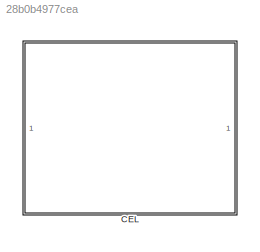
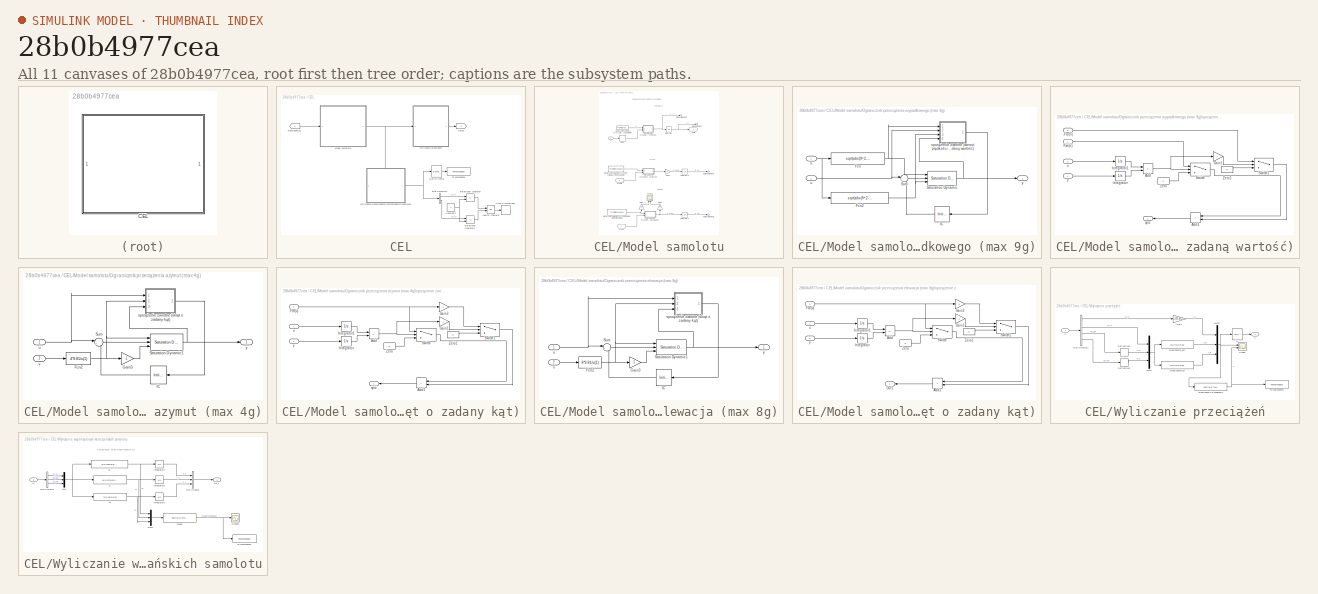
[diagram: thumbnail index - all 11 canvases of the model, root first then tree order]
MODEL slx_28b0b4977cea
KIND model
CONFIG AbsTol = auto
CONFIG EnableMultiTasking = off
CONFIG FixedStep = auto
CONFIG MaxStep = 0.1
CONFIG MinStep = auto
CONFIG RelTol = 1e-3
CONFIG SampleTimeConstraint = Unconstrained
CONFIG Solver = VariableStepAuto
CONFIG SolverName = VariableStepAuto
CONFIG StartTime = 0.0
CONFIG StopTime = t_sim
BLOCK [SubSystem] CEL
  Ports = []
  RequestExecContextInheritance = off
BLOCK [BusSelector] CEL/Bus Selector1
  OutputSignals = x_c,z_c
  Ports = [1, 2]
BLOCK [BusToVector] CEL/Bus to Vector
BLOCK [Constant] CEL/Constant1
  Value = 0
BLOCK [Goto] CEL/Goto1
  GotoTag = n
BLOCK [Logic] CEL/Logical Operator
  AllPortsSameDT = off
  Operator = OR
  OutDataTypeStr = boolean
  Ports = [2, 1]
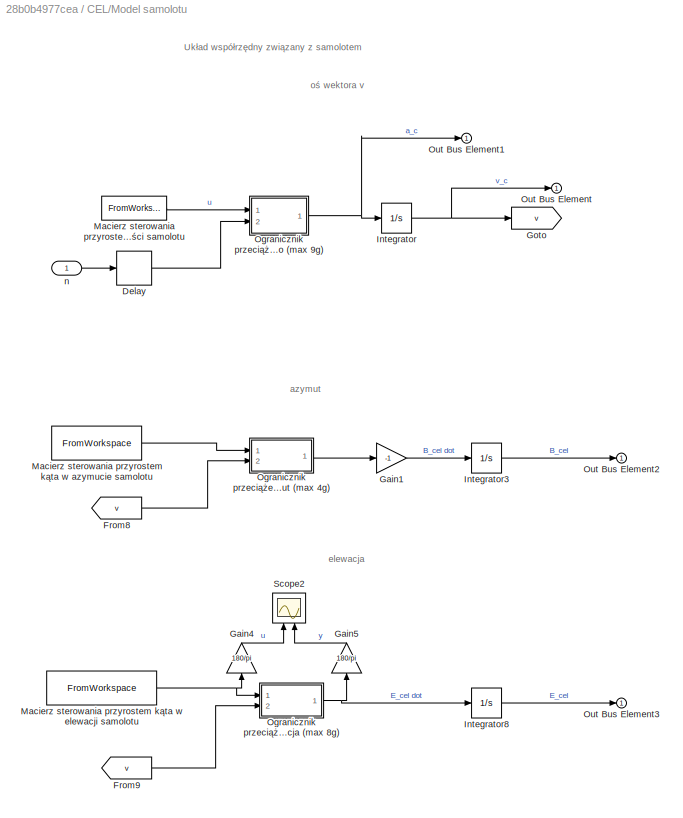
BLOCK [SubSystem] CEL/Model samolotu
  Ports = [1, 1]
  RequestExecContextInheritance = off
BLOCK [Delay] CEL/Model samolotu/Delay
  DelayLength = 1
  InputPortMap = u0
  Ports = [1, 1]
BLOCK [From] CEL/Model samolotu/From8
  GotoTag = v
BLOCK [From] CEL/Model samolotu/From9
  GotoTag = v
BLOCK [Gain] CEL/Model samolotu/Gain1
  Gain = -1
BLOCK [Gain] CEL/Model samolotu/Gain4
  Gain = 180/pi
  NameLocation = right
BLOCK [Gain] CEL/Model samolotu/Gain5
  Gain = 180/pi
  NameLocation = right
BLOCK [Goto] CEL/Model samolotu/Goto
  GotoTag = v
BLOCK [Integrator] CEL/Model samolotu/Integrator
  InitialCondition = v0
  Ports = [1, 1]
BLOCK [Integrator] CEL/Model samolotu/Integrator3
  InitialCondition = B_cel0
  Ports = [1, 1]
BLOCK [Integrator] CEL/Model samolotu/Integrator8
  InitialCondition = E_cel0
  Ports = [1, 1]
BLOCK [FromWorkspace] CEL/Model samolotu/Macierz sterowania przyrostem kąta w azymucie samolotu
  VariableName = [T B_cel_dot]
BLOCK [FromWorkspace] CEL/Model samolotu/Macierz sterowania przyrostem kąta w elewacji samolotu
  VariableName = [T E_cel_dot]
BLOCK [FromWorkspace] CEL/Model samolotu/Macierz sterowania przyrostem prędkości samolotu 
  VariableName = [T Ac]
BLOCK [SubSystem] CEL/Model samolotu/Ogranicznik przeciążenia azymut (max 4g)
  Ports = [2, 1]
  RequestExecContextInheritance = off
BLOCK [Fcn] CEL/Model samolotu/Ogranicznik przeciążenia azymut (max 4g)/Fcn2
  Expr = 4*9.81/u(1)
BLOCK [Gain] CEL/Model samolotu/Ogranicznik przeciążenia azymut (max 4g)/Gain3
  Gain = -1
BLOCK [InitialCondition] CEL/Model samolotu/Ogranicznik przeciążenia azymut (max 4g)/IC
  Value = 0
BLOCK [Reference] CEL/Model samolotu/Ogranicznik przeciążenia azymut (max 4g)/Saturation Dynamic1  REF=simulink/Discontinuities/Saturation
Dynamic
  Ports = [3, 1]
  SourceBlock = simulink/Discontinuities/Saturation\nDynamic
  SourceProductBaseCode = SL
  SourceType = Saturation Dynamic
BLOCK [Sum] CEL/Model samolotu/Ogranicznik przeciążenia azymut (max 4g)/Sum
  Inputs = |++
  Ports = [2, 1]
BLOCK [SubSystem] CEL/Model samolotu/Ogranicznik przeciążenia azymut (max 4g)/sprzężenie zwrotne (skręt o zadany kąt)
  Ports = [3, 1]
  RequestExecContextInheritance = off
BLOCK [Sum] CEL/Model samolotu/Ogranicznik przeciążenia azymut (max 4g)/sprzężenie zwrotne (skręt o zadany kąt)/Add
  IconShape = rectangular
  Inputs = +-
  Ports = [2, 1]
BLOCK [Sum] CEL/Model samolotu/Ogranicznik przeciążenia azymut (max 4g)/sprzężenie zwrotne (skręt o zadany kąt)/Add1
  IconShape = rectangular
  NameLocation = top
  Ports = [2, 1]
BLOCK [Inport] CEL/Model samolotu/Ogranicznik przeciążenia azymut (max 4g)/sprzężenie zwrotne (skręt o zadany kąt)/Fcn(v)
  Port = 2
BLOCK [Gain] CEL/Model samolotu/Ogranicznik przeciążenia azymut (max 4g)/sprzężenie zwrotne (skręt o zadany kąt)/Gain1
  Gain = -1
BLOCK [Gain] CEL/Model samolotu/Ogranicznik przeciążenia azymut (max 4g)/sprzężenie zwrotne (skręt o zadany kąt)/Gain2
  Gain = -1
BLOCK [Integrator] CEL/Model samolotu/Ogranicznik przeciążenia azymut (max 4g)/sprzężenie zwrotne (skręt o zadany kąt)/Integrator
  Ports = [1, 1]
BLOCK [Integrator] CEL/Model samolotu/Ogranicznik przeciążenia azymut (max 4g)/sprzężenie zwrotne (skręt o zadany kąt)/Integrator1
  Ports = [1, 1]
BLOCK [Switch] CEL/Model samolotu/Ogranicznik przeciążenia azymut (max 4g)/sprzężenie zwrotne (skręt o zadany kąt)/Switch
  Criteria = u2 > Threshold
  InputSameDT = off
  SaturateOnIntegerOverflow = off
  Threshold = 0.000001
BLOCK [Switch] CEL/Model samolotu/Ogranicznik przeciążenia azymut (max 4g)/sprzężenie zwrotne (skręt o zadany kąt)/Switch1
  Criteria = u2 > Threshold
  InputSameDT = off
  SaturateOnIntegerOverflow = off
  Threshold = 0.000001
BLOCK [Constant] CEL/Model samolotu/Ogranicznik przeciążenia azymut (max 4g)/sprzężenie zwrotne (skręt o zadany kąt)/Zero
  OutDataTypeStr = Inherit: Inherit via back propagation
  Value = 0
BLOCK [Constant] CEL/Model samolotu/Ogranicznik przeciążenia azymut (max 4g)/sprzężenie zwrotne (skręt o zadany kąt)/Zero1
  OutDataTypeStr = Inherit: Inherit via back propagation
  Value = 0
BLOCK [Outport] CEL/Model samolotu/Ogranicznik przeciążenia azymut (max 4g)/sprzężenie zwrotne (skręt o zadany kąt)/sprz
  NameLocation = top
BLOCK [Inport] CEL/Model samolotu/Ogranicznik przeciążenia azymut (max 4g)/sprzężenie zwrotne (skręt o zadany kąt)/u
BLOCK [Inport] CEL/Model samolotu/Ogranicznik przeciążenia azymut (max 4g)/sprzężenie zwrotne (skręt o zadany kąt)/y
  Port = 3
BLOCK [Inport] CEL/Model samolotu/Ogranicznik przeciążenia azymut (max 4g)/u
BLOCK [Inport] CEL/Model samolotu/Ogranicznik przeciążenia azymut (max 4g)/v
  Port = 2
BLOCK [Outport] CEL/Model samolotu/Ogranicznik przeciążenia azymut (max 4g)/y
BLOCK [SubSystem] CEL/Model samolotu/Ogranicznik przeciążenia elewacja (max 8g)
  Ports = [2, 1]
  RequestExecContextInheritance = off
BLOCK [Fcn] CEL/Model samolotu/Ogranicznik przeciążenia elewacja (max 8g)/Fcn2
  Expr = 8*9.81/u(1)
BLOCK [Gain] CEL/Model samolotu/Ogranicznik przeciążenia elewacja (max 8g)/Gain3
  Gain = -1
BLOCK [InitialCondition] CEL/Model samolotu/Ogranicznik przeciążenia elewacja (max 8g)/IC
  Value = 0
BLOCK [Reference] CEL/Model samolotu/Ogranicznik przeciążenia elewacja (max 8g)/Saturation Dynamic1  REF=simulink/Discontinuities/Saturation
Dynamic
  Ports = [3, 1]
  SourceBlock = simulink/Discontinuities/Saturation\nDynamic
  SourceProductBaseCode = SL
  SourceType = Saturation Dynamic
BLOCK [Sum] CEL/Model samolotu/Ogranicznik przeciążenia elewacja (max 8g)/Sum
  Inputs = |++
  Ports = [2, 1]
BLOCK [SubSystem] CEL/Model samolotu/Ogranicznik przeciążenia elewacja (max 8g)/sprzężenie zwrotne (skręt o zadany kąt)
  Ports = [3, 1]
  RequestExecContextInheritance = off
BLOCK [Sum] CEL/Model samolotu/Ogranicznik przeciążenia elewacja (max 8g)/sprzężenie zwrotne (skręt o zadany kąt)/Add
  IconShape = rectangular
  Inputs = +-
  Ports = [2, 1]
BLOCK [Sum] CEL/Model samolotu/Ogranicznik przeciążenia elewacja (max 8g)/sprzężenie zwrotne (skręt o zadany kąt)/Add1
  IconShape = rectangular
  NameLocation = top
  Ports = [2, 1]
BLOCK [Inport] CEL/Model samolotu/Ogranicznik przeciążenia elewacja (max 8g)/sprzężenie zwrotne (skręt o zadany kąt)/Fcn(v)
  Port = 2
BLOCK [Gain] CEL/Model samolotu/Ogranicznik przeciążenia elewacja (max 8g)/sprzężenie zwrotne (skręt o zadany kąt)/Gain1
  Gain = -1
BLOCK [Gain] CEL/Model samolotu/Ogranicznik przeciążenia elewacja (max 8g)/sprzężenie zwrotne (skręt o zadany kąt)/Gain2
  Gain = -1
BLOCK [Integrator] CEL/Model samolotu/Ogranicznik przeciążenia elewacja (max 8g)/sprzężenie zwrotne (skręt o zadany kąt)/Integrator
  Ports = [1, 1]
BLOCK [Integrator] CEL/Model samolotu/Ogranicznik przeciążenia elewacja (max 8g)/sprzężenie zwrotne (skręt o zadany kąt)/Integrator1
  Ports = [1, 1]
BLOCK [Outport] CEL/Model samolotu/Ogranicznik przeciążenia elewacja (max 8g)/sprzężenie zwrotne (skręt o zadany kąt)/Out1
  NameLocation = top
BLOCK [Switch] CEL/Model samolotu/Ogranicznik przeciążenia elewacja (max 8g)/sprzężenie zwrotne (skręt o zadany kąt)/Switch
  Criteria = u2 > Threshold
  InputSameDT = off
  SaturateOnIntegerOverflow = off
  Threshold = 0.000001
BLOCK [Switch] CEL/Model samolotu/Ogranicznik przeciążenia elewacja (max 8g)/sprzężenie zwrotne (skręt o zadany kąt)/Switch1
  Criteria = u2 > Threshold
  InputSameDT = off
  SaturateOnIntegerOverflow = off
  Threshold = 0.000001
BLOCK [Constant] CEL/Model samolotu/Ogranicznik przeciążenia elewacja (max 8g)/sprzężenie zwrotne (skręt o zadany kąt)/Zero
  OutDataTypeStr = Inherit: Inherit via back propagation
  Value = 0
BLOCK [Constant] CEL/Model samolotu/Ogranicznik przeciążenia elewacja (max 8g)/sprzężenie zwrotne (skręt o zadany kąt)/Zero1
  OutDataTypeStr = Inherit: Inherit via back propagation
  Value = 0
BLOCK [Inport] CEL/Model samolotu/Ogranicznik przeciążenia elewacja (max 8g)/sprzężenie zwrotne (skręt o zadany kąt)/u
BLOCK [Inport] CEL/Model samolotu/Ogranicznik przeciążenia elewacja (max 8g)/sprzężenie zwrotne (skręt o zadany kąt)/y
  Port = 3
BLOCK [Inport] CEL/Model samolotu/Ogranicznik przeciążenia elewacja (max 8g)/u
BLOCK [Inport] CEL/Model samolotu/Ogranicznik przeciążenia elewacja (max 8g)/v
  Port = 2
BLOCK [Outport] CEL/Model samolotu/Ogranicznik przeciążenia elewacja (max 8g)/y
BLOCK [SubSystem] CEL/Model samolotu/Ogranicznik przeciążenia wypadkowego (max 9g)
  Ports = [2, 1]
  RequestExecContextInheritance = off
BLOCK [Fcn] CEL/Model samolotu/Ogranicznik przeciążenia wypadkowego (max 9g)/Fcn
  Expr = sqrt(abs(9^2-u(3)^2-u(2)^2))*9.81
BLOCK [Fcn] CEL/Model samolotu/Ogranicznik przeciążenia wypadkowego (max 9g)/Fcn2
  Expr = sqrt(abs(9^2-u(3)^2-u(2)^2))*-9.81
BLOCK [InitialCondition] CEL/Model samolotu/Ogranicznik przeciążenia wypadkowego (max 9g)/IC
  Value = 0
BLOCK [Reference] CEL/Model samolotu/Ogranicznik przeciążenia wypadkowego (max 9g)/Saturation Dynamic  REF=simulink/Discontinuities/Saturation
Dynamic
  Ports = [3, 1]
  SourceBlock = simulink/Discontinuities/Saturation\nDynamic
  SourceProductBaseCode = SL
  SourceType = Saturation Dynamic
BLOCK [Sum] CEL/Model samolotu/Ogranicznik przeciążenia wypadkowego (max 9g)/Sum
  Inputs = |++
  Ports = [2, 1]
BLOCK [Inport] CEL/Model samolotu/Ogranicznik przeciążenia wypadkowego (max 9g)/n
  Port = 2
BLOCK [SubSystem] CEL/Model samolotu/Ogranicznik przeciążenia wypadkowego (max 9g)/sprzężenie zwrotne (wzrost prędkości o zadaną wartość)
  Ports = [4, 1]
  RequestExecContextInheritance = off
BLOCK [Inport] CEL/Model samolotu/Ogranicznik przeciążenia wypadkowego (max 9g)/sprzężenie zwrotne (wzrost prędkości o zadaną wartość)/-Fcn(n)
  Port = 3
BLOCK [Sum] CEL/Model samolotu/Ogranicznik przeciążenia wypadkowego (max 9g)/sprzężenie zwrotne (wzrost prędkości o zadaną wartość)/Add
  IconShape = rectangular
  Inputs = +-
  Ports = [2, 1]
BLOCK [Sum] CEL/Model samolotu/Ogranicznik przeciążenia wypadkowego (max 9g)/sprzężenie zwrotne (wzrost prędkości o zadaną wartość)/Add1
  IconShape = rectangular
  NameLocation = top
  Ports = [2, 1]
BLOCK [Inport] CEL/Model samolotu/Ogranicznik przeciążenia wypadkowego (max 9g)/sprzężenie zwrotne (wzrost prędkości o zadaną wartość)/Fcn(n)
BLOCK [Gain] CEL/Model samolotu/Ogranicznik przeciążenia wypadkowego (max 9g)/sprzężenie zwrotne (wzrost prędkości o zadaną wartość)/Gain1
  Gain = -1
BLOCK [Integrator] CEL/Model samolotu/Ogranicznik przeciążenia wypadkowego (max 9g)/sprzężenie zwrotne (wzrost prędkości o zadaną wartość)/Integrator
  Ports = [1, 1]
BLOCK [Integrator] CEL/Model samolotu/Ogranicznik przeciążenia wypadkowego (max 9g)/sprzężenie zwrotne (wzrost prędkości o zadaną wartość)/Integrator1
  Ports = [1, 1]
BLOCK [Switch] CEL/Model samolotu/Ogranicznik przeciążenia wypadkowego (max 9g)/sprzężenie zwrotne (wzrost prędkości o zadaną wartość)/Switch
  Criteria = u2 > Threshold
  InputSameDT = off
  SaturateOnIntegerOverflow = off
  Threshold = 0.000001
BLOCK [Switch] CEL/Model samolotu/Ogranicznik przeciążenia wypadkowego (max 9g)/sprzężenie zwrotne (wzrost prędkości o zadaną wartość)/Switch1
  Criteria = u2 > Threshold
  InputSameDT = off
  SaturateOnIntegerOverflow = off
  Threshold = 0.000001
BLOCK [Constant] CEL/Model samolotu/Ogranicznik przeciążenia wypadkowego (max 9g)/sprzężenie zwrotne (wzrost prędkości o zadaną wartość)/Zero
  OutDataTypeStr = Inherit: Inherit via back propagation
  Value = 0
BLOCK [Constant] CEL/Model samolotu/Ogranicznik przeciążenia wypadkowego (max 9g)/sprzężenie zwrotne (wzrost prędkości o zadaną wartość)/Zero1
  OutDataTypeStr = Inherit: Inherit via back propagation
  Value = 0
BLOCK [Outport] CEL/Model samolotu/Ogranicznik przeciążenia wypadkowego (max 9g)/sprzężenie zwrotne (wzrost prędkości o zadaną wartość)/sprz
BLOCK [Inport] CEL/Model samolotu/Ogranicznik przeciążenia wypadkowego (max 9g)/sprzężenie zwrotne (wzrost prędkości o zadaną wartość)/u
  Port = 2
BLOCK [Inport] CEL/Model samolotu/Ogranicznik przeciążenia wypadkowego (max 9g)/sprzężenie zwrotne (wzrost prędkości o zadaną wartość)/y
  Port = 4
BLOCK [Inport] CEL/Model samolotu/Ogranicznik przeciążenia wypadkowego (max 9g)/u
BLOCK [Outport] CEL/Model samolotu/Ogranicznik przeciążenia wypadkowego (max 9g)/y
BLOCK [Outport] CEL/Model samolotu/Out Bus Element
BLOCK [Outport] CEL/Model samolotu/Out Bus Element1
BLOCK [Outport] CEL/Model samolotu/Out Bus Element2
BLOCK [Outport] CEL/Model samolotu/Out Bus Element3
BLOCK [Scope] CEL/Model samolotu/Scope2
  Floating = off
  NameLocation = right
  NumInputPorts = 2
  Ports = [2]
  ScopeSpecificationString = Simulink.scopes.TimeScopeBlockCfg('CurrentConfiguration', extmgr.ConfigurationSet(extmgr.Configuration('Core','General UI',true),extmgr.Configuration('Core','Source UI',true),extmgr.Configuration('Sources','WiredSimulink',true,'DataLoggingVariableName','ScopeData1'),extmgr.Configuration('Visuals','Time Domain',true,'SerializedDisplays',{struct('MinYLimReal','-1.00000','MaxYLimReal','1.00000','YLab...<+1437ch>
BLOCK [Inport] CEL/Model samolotu/n
BLOCK [RelationalOperator] CEL/Relational Operator
  InputSameDT = off
  Operator = <=
  OutDataTypeStr = boolean
  Ports = [2, 1]
  RndMeth = Simplest
BLOCK [RelationalOperator] CEL/Relational Operator1
  InputSameDT = off
  Operator = <=
  OutDataTypeStr = boolean
  Ports = [2, 1]
  RndMeth = Simplest
BLOCK [Stop] CEL/Stop Simulation1
BLOCK [ToWorkspace] CEL/To Workspace
  FixptAsFi = on
  MaxDataPoints = inf
  Ports = [1]
  SampleTime = 0.25
  SaveFormat = Timeseries
  VariableName = xyz_c
BLOCK [SubSystem] CEL/Wyliczanie przeciążeń
  Ports = [1, 1]
  RequestExecContextInheritance = off
BLOCK [BusSelector] CEL/Wyliczanie przeciążeń/Bus Selector1
  OutputSignals = a_c,v_c,B_cel,E_cel
  Ports = [1, 4]
BLOCK [Derivative] CEL/Wyliczanie przeciążeń/Derivative1
BLOCK [Derivative] CEL/Wyliczanie przeciążeń/Derivative2
BLOCK [Gain] CEL/Wyliczanie przeciążeń/Gain
  Gain = 1/9.81
BLOCK [InitialCondition] CEL/Wyliczanie przeciążeń/IC
  Value = 0
BLOCK [Inport] CEL/Wyliczanie przeciążeń/In
BLOCK [Mux] CEL/Wyliczanie przeciążeń/Mux3
  DisplayOption = bar
  Inputs = 3
  Ports = [3, 1]
BLOCK [Mux] CEL/Wyliczanie przeciążeń/Mux5
  DisplayOption = bar
  Inputs = 3
  Ports = [3, 1]
BLOCK [Scope] CEL/Wyliczanie przeciążeń/Scope
  Floating = off
  NumInputPorts = 2
  Ports = [2]
  ScopeSpecificationString = Simulink.scopes.TimeScopeBlockCfg('CurrentConfiguration', extmgr.ConfigurationSet(extmgr.Configuration('Core','General UI',true),extmgr.Configuration('Core','Source UI',true),extmgr.Configuration('Sources','WiredSimulink',true,'DataLoggingVariableName','ScopeData1'),extmgr.Configuration('Visuals','Time Domain',true,'SerializedDisplays',{struct('MinYLimReal','-11.39921','MaxYLimReal','12.59289','YL...<+2169ch>
BLOCK [ToWorkspace] CEL/Wyliczanie przeciążeń/To Workspace1
  FixptAsFi = on
  MaxDataPoints = inf
  Ports = [1]
  SampleTime = 0.25
  SaveFormat = Timeseries
  VariableName = n
BLOCK [Outport] CEL/Wyliczanie przeciążeń/n
BLOCK [Fcn] CEL/Wyliczanie przeciążeń/przeciazenie wypadkowe
  Expr = sqrt(u(1)^2+u(2)^2+u(3)^2)
BLOCK [Fcn] CEL/Wyliczanie przeciążeń/przeciazenie_azy
  Expr = u(1)*u(2)/9.81
BLOCK [Fcn] CEL/Wyliczanie przeciążeń/przeciazenie_el
  Expr = u(1)*u(3)/9.81
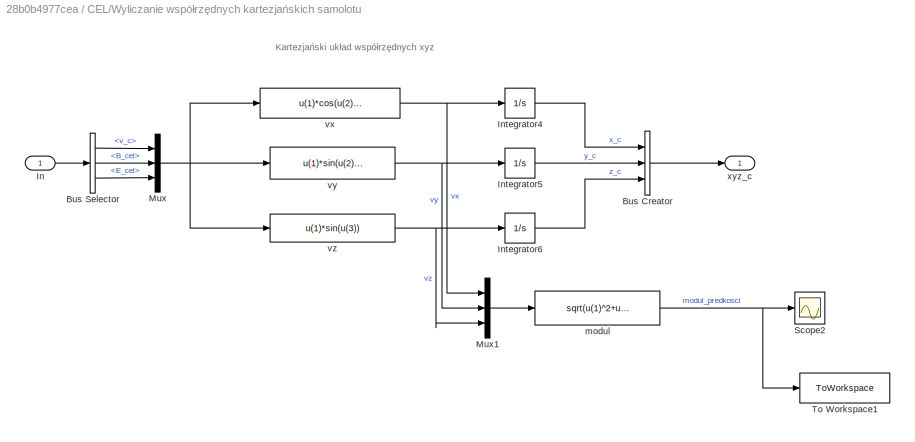
BLOCK [SubSystem] CEL/Wyliczanie współrzędnych kartezjańskich samolotu
  PortSchema = {"entries":[{"content":{"sides":[{"content":{"connectorIds":[]},"type":"ConnectorPlacement.EquallySpacedRectSide","uuid":"2ae1aec2-e4bf-4b19-9a5e-448bf8307686"},{"content":{"connectorIds":["Out1"],"side":"RIGHT"},"type":"ConnectorPlacement.EquallySpacedRectSide","uuid":"06d750e3-693c-429f-872d-17e0894ecc7b"},{"content":{"connectorIds":["In1"],"side":"TOP"},"type":"ConnectorPlacement.EquallySpacedR...<+242ch>
  Ports = [1, 1]
  RequestExecContextInheritance = off
BLOCK [BusCreator] CEL/Wyliczanie współrzędnych kartezjańskich samolotu/Bus Creator
  DisplayOption = bar
  InheritFromInputs = on
  Inputs = 3
  Ports = [3, 1]
BLOCK [BusSelector] CEL/Wyliczanie współrzędnych kartezjańskich samolotu/Bus Selector
  OutputSignals = v_c,B_cel,E_cel
  Ports = [1, 3]
BLOCK [Inport] CEL/Wyliczanie współrzędnych kartezjańskich samolotu/In
BLOCK [Integrator] CEL/Wyliczanie współrzędnych kartezjańskich samolotu/Integrator4
  InitialCondition = x0
  Ports = [1, 1]
BLOCK [Integrator] CEL/Wyliczanie współrzędnych kartezjańskich samolotu/Integrator5
  InitialCondition = y0
  Ports = [1, 1]
BLOCK [Integrator] CEL/Wyliczanie współrzędnych kartezjańskich samolotu/Integrator6
  InitialCondition = z0
  Ports = [1, 1]
BLOCK [Mux] CEL/Wyliczanie współrzędnych kartezjańskich samolotu/Mux
  DisplayOption = bar
  Inputs = 3
  Ports = [3, 1]
BLOCK [Mux] CEL/Wyliczanie współrzędnych kartezjańskich samolotu/Mux1
  DisplayOption = bar
  Inputs = 3
  Ports = [3, 1]
BLOCK [Scope] CEL/Wyliczanie współrzędnych kartezjańskich samolotu/Scope2
  Floating = off
  NumInputPorts = 1
  Ports = [1]
  ScopeSpecificationString = Simulink.scopes.TimeScopeBlockCfg('CurrentConfiguration', extmgr.ConfigurationSet(extmgr.Configuration('Core','General UI',true),extmgr.Configuration('Core','Source UI',true),extmgr.Configuration('Sources','WiredSimulink',true,'DataLoggingVariableName','ScopeData2'),extmgr.Configuration('Visuals','Time Domain',true,'SerializedDisplays',{struct('MinYLimReal','238.1199','MaxYLimReal','856.9209','YLa...<+1380ch>
BLOCK [ToWorkspace] CEL/Wyliczanie współrzędnych kartezjańskich samolotu/To Workspace1
  FixptAsFi = on
  MaxDataPoints = inf
  Ports = [1]
  SampleTime = 0.25
  SaveFormat = Timeseries
  VariableName = v
BLOCK [Fcn] CEL/Wyliczanie współrzędnych kartezjańskich samolotu/modul
  Expr = sqrt(u(1)^2+u(2)^2+u(3)^2)
BLOCK [Fcn] CEL/Wyliczanie współrzędnych kartezjańskich samolotu/vx
  Expr = u(1)*cos(u(2))*cos(u(3))
BLOCK [Fcn] CEL/Wyliczanie współrzędnych kartezjańskich samolotu/vy
  Expr = u(1)*sin(u(2))*cos(u(3))
BLOCK [Fcn] CEL/Wyliczanie współrzędnych kartezjańskich samolotu/vz
  Expr = u(1)*sin(u(3))
BLOCK [Outport] CEL/Wyliczanie współrzędnych kartezjańskich samolotu/xyz_c
BLOCK [From] CEL/przeciążenia1
  GotoTag = n
ANNOTATION CEL/Model samolotu: Układ współrzędny związany z samolotem
ANNOTATION CEL/Model samolotu: azymut
ANNOTATION CEL/Model samolotu: elewacja
ANNOTATION CEL/Model samolotu: oś wektora v
ANNOTATION CEL/Wyliczanie współrzędnych kartezjańskich samolotu: Kartezjański układ współrzędnych xyz
LINE CEL/Bus Selector1:1 -> CEL/Relational Operator:1
LINE CEL/Bus Selector1:2 -> CEL/Relational Operator1:1
LINE CEL/Bus to Vector:1 -> CEL/To Workspace:1
NET CEL/Constant1:1 -> CEL/Relational Operator1:2, CEL/Relational Operator:2
LINE CEL/Logical Operator:1 -> CEL/Stop Simulation1:1
LINE CEL/Model samolotu/Delay:1 -> CEL/Model samolotu/Ogranicznik przeciążenia wypadkowego (max 9g):2
LINE CEL/Model samolotu/From8:1 -> CEL/Model samolotu/Ogranicznik przeciążenia azymut (max 4g):2
LINE CEL/Model samolotu/From9:1 -> CEL/Model samolotu/Ogranicznik przeciążenia elewacja (max 8g):2
LINE CEL/Model samolotu/Gain1:1 -> CEL/Model samolotu/Integrator3:1
LINE CEL/Model samolotu/Gain4:1 -> CEL/Model samolotu/Scope2:1
LINE CEL/Model samolotu/Gain5:1 -> CEL/Model samolotu/Scope2:2
LINE CEL/Model samolotu/Integrator3:1 -> CEL/Model samolotu/Out Bus Element2:1
LINE CEL/Model samolotu/Integrator8:1 -> CEL/Model samolotu/Out Bus Element3:1
NET CEL/Model samolotu/Integrator:1 -> CEL/Model samolotu/Goto:1, CEL/Model samolotu/Out Bus Element:1
LINE CEL/Model samolotu/Macierz sterowania przyrostem kąta w azymucie samolotu:1 -> CEL/Model samolotu/Ogranicznik przeciążenia azymut (max 4g):1
NET CEL/Model samolotu/Macierz sterowania przyrostem kąta w elewacji samolotu:1 -> CEL/Model samolotu/Gain4:1, CEL/Model samolotu/Ogranicznik przeciążenia elewacja (max 8g):1
LINE CEL/Model samolotu/Macierz sterowania przyrostem prędkości samolotu :1 -> CEL/Model samolotu/Ogranicznik przeciążenia wypadkowego (max 9g):1
NET CEL/Model samolotu/Ogranicznik przeciążenia azymut (max 4g)/Fcn2:1 -> CEL/Model samolotu/Ogranicznik przeciążenia azymut (max 4g)/Gain3:1, CEL/Model samolotu/Ogranicznik przeciążenia azymut (max 4g)/Saturation Dynamic1:1, CEL/Model samolotu/Ogranicznik przeciążenia azymut (max 4g)/sprzężenie zwrotne (skręt o zadany kąt):2
LINE CEL/Model samolotu/Ogranicznik przeciążenia azymut (max 4g)/Gain3:1 -> CEL/Model samolotu/Ogranicznik przeciążenia azymut (max 4g)/Saturation Dynamic1:3
LINE CEL/Model samolotu/Ogranicznik przeciążenia azymut (max 4g)/IC:1 -> CEL/Model samolotu/Ogranicznik przeciążenia azymut (max 4g)/Sum:2
NET CEL/Model samolotu/Ogranicznik przeciążenia azymut (max 4g)/Saturation Dynamic1:1 -> CEL/Model samolotu/Ogranicznik przeciążenia azymut (max 4g)/sprzężenie zwrotne (skręt o zadany kąt):3, CEL/Model samolotu/Ogranicznik przeciążenia azymut (max 4g)/y:1
LINE CEL/Model samolotu/Ogranicznik przeciążenia azymut (max 4g)/Sum:1 -> CEL/Model samolotu/Ogranicznik przeciążenia azymut (max 4g)/Saturation Dynamic1:2
LINE CEL/Model samolotu/Ogranicznik przeciążenia azymut (max 4g)/sprzężenie zwrotne (skręt o zadany kąt)/Add1:1 -> CEL/Model samolotu/Ogranicznik przeciążenia azymut (max 4g)/sprzężenie zwrotne (skręt o zadany kąt)/sprz:1
NET CEL/Model samolotu/Ogranicznik przeciążenia azymut (max 4g)/sprzężenie zwrotne (skręt o zadany kąt)/Add:1 -> CEL/Model samolotu/Ogranicznik przeciążenia azymut (max 4g)/sprzężenie zwrotne (skręt o zadany kąt)/Gain1:1, CEL/Model samolotu/Ogranicznik przeciążenia azymut (max 4g)/sprzężenie zwrotne (skręt o zadany kąt)/Switch:2
NET CEL/Model samolotu/Ogranicznik przeciążenia azymut (max 4g)/sprzężenie zwrotne (skręt o zadany kąt)/Fcn(v):1 -> CEL/Model samolotu/Ogranicznik przeciążenia azymut (max 4g)/sprzężenie zwrotne (skręt o zadany kąt)/Gain2:1, CEL/Model samolotu/Ogranicznik przeciążenia azymut (max 4g)/sprzężenie zwrotne (skręt o zadany kąt)/Switch:1
LINE CEL/Model samolotu/Ogranicznik przeciążenia azymut (max 4g)/sprzężenie zwrotne (skręt o zadany kąt)/Gain1:1 -> CEL/Model samolotu/Ogranicznik przeciążenia azymut (max 4g)/sprzężenie zwrotne (skręt o zadany kąt)/Switch1:2
LINE CEL/Model samolotu/Ogranicznik przeciążenia azymut (max 4g)/sprzężenie zwrotne (skręt o zadany kąt)/Gain2:1 -> CEL/Model samolotu/Ogranicznik przeciążenia azymut (max 4g)/sprzężenie zwrotne (skręt o zadany kąt)/Switch1:1
LINE CEL/Model samolotu/Ogranicznik przeciążenia azymut (max 4g)/sprzężenie zwrotne (skręt o zadany kąt)/Integrator1:1 -> CEL/Model samolotu/Ogranicznik przeciążenia azymut (max 4g)/sprzężenie zwrotne (skręt o zadany kąt)/Add:1
LINE CEL/Model samolotu/Ogranicznik przeciążenia azymut (max 4g)/sprzężenie zwrotne (skręt o zadany kąt)/Integrator:1 -> CEL/Model samolotu/Ogranicznik przeciążenia azymut (max 4g)/sprzężenie zwrotne (skręt o zadany kąt)/Add:2
LINE CEL/Model samolotu/Ogranicznik przeciążenia azymut (max 4g)/sprzężenie zwrotne (skręt o zadany kąt)/Switch1:1 -> CEL/Model samolotu/Ogranicznik przeciążenia azymut (max 4g)/sprzężenie zwrotne (skręt o zadany kąt)/Add1:2
LINE CEL/Model samolotu/Ogranicznik przeciążenia azymut (max 4g)/sprzężenie zwrotne (skręt o zadany kąt)/Switch:1 -> CEL/Model samolotu/Ogranicznik przeciążenia azymut (max 4g)/sprzężenie zwrotne (skręt o zadany kąt)/Add1:1
LINE CEL/Model samolotu/Ogranicznik przeciążenia azymut (max 4g)/sprzężenie zwrotne (skręt o zadany kąt)/Zero1:1 -> CEL/Model samolotu/Ogranicznik przeciążenia azymut (max 4g)/sprzężenie zwrotne (skręt o zadany kąt)/Switch1:3
LINE CEL/Model samolotu/Ogranicznik przeciążenia azymut (max 4g)/sprzężenie zwrotne (skręt o zadany kąt)/Zero:1 -> CEL/Model samolotu/Ogranicznik przeciążenia azymut (max 4g)/sprzężenie zwrotne (skręt o zadany kąt)/Switch:3
LINE CEL/Model samolotu/Ogranicznik przeciążenia azymut (max 4g)/sprzężenie zwrotne (skręt o zadany kąt)/u:1 -> CEL/Model samolotu/Ogranicznik przeciążenia azymut (max 4g)/sprzężenie zwrotne (skręt o zadany kąt)/Integrator1:1
LINE CEL/Model samolotu/Ogranicznik przeciążenia azymut (max 4g)/sprzężenie zwrotne (skręt o zadany kąt)/y:1 -> CEL/Model samolotu/Ogranicznik przeciążenia azymut (max 4g)/sprzężenie zwrotne (skręt o zadany kąt)/Integrator:1
LINE CEL/Model samolotu/Ogranicznik przeciążenia azymut (max 4g)/sprzężenie zwrotne (skręt o zadany kąt):1 -> CEL/Model samolotu/Ogranicznik przeciążenia azymut (max 4g)/IC:1
NET CEL/Model samolotu/Ogranicznik przeciążenia azymut (max 4g)/u:1 -> CEL/Model samolotu/Ogranicznik przeciążenia azymut (max 4g)/Sum:1, CEL/Model samolotu/Ogranicznik przeciążenia azymut (max 4g)/sprzężenie zwrotne (skręt o zadany kąt):1
LINE CEL/Model samolotu/Ogranicznik przeciążenia azymut (max 4g)/v:1 -> CEL/Model samolotu/Ogranicznik przeciążenia azymut (max 4g)/Fcn2:1
LINE CEL/Model samolotu/Ogranicznik przeciążenia azymut (max 4g):1 -> CEL/Model samolotu/Gain1:1
NET CEL/Model samolotu/Ogranicznik przeciążenia elewacja (max 8g)/Fcn2:1 -> CEL/Model samolotu/Ogranicznik przeciążenia elewacja (max 8g)/Gain3:1, CEL/Model samolotu/Ogranicznik przeciążenia elewacja (max 8g)/Saturation Dynamic1:1, CEL/Model samolotu/Ogranicznik przeciążenia elewacja (max 8g)/sprzężenie zwrotne (skręt o zadany kąt):2
LINE CEL/Model samolotu/Ogranicznik przeciążenia elewacja (max 8g)/Gain3:1 -> CEL/Model samolotu/Ogranicznik przeciążenia elewacja (max 8g)/Saturation Dynamic1:3
LINE CEL/Model samolotu/Ogranicznik przeciążenia elewacja (max 8g)/IC:1 -> CEL/Model samolotu/Ogranicznik przeciążenia elewacja (max 8g)/Sum:2
NET CEL/Model samolotu/Ogranicznik przeciążenia elewacja (max 8g)/Saturation Dynamic1:1 -> CEL/Model samolotu/Ogranicznik przeciążenia elewacja (max 8g)/sprzężenie zwrotne (skręt o zadany kąt):3, CEL/Model samolotu/Ogranicznik przeciążenia elewacja (max 8g)/y:1
LINE CEL/Model samolotu/Ogranicznik przeciążenia elewacja (max 8g)/Sum:1 -> CEL/Model samolotu/Ogranicznik przeciążenia elewacja (max 8g)/Saturation Dynamic1:2
LINE CEL/Model samolotu/Ogranicznik przeciążenia elewacja (max 8g)/sprzężenie zwrotne (skręt o zadany kąt)/Add1:1 -> CEL/Model samolotu/Ogranicznik przeciążenia elewacja (max 8g)/sprzężenie zwrotne (skręt o zadany kąt)/Out1:1
NET CEL/Model samolotu/Ogranicznik przeciążenia elewacja (max 8g)/sprzężenie zwrotne (skręt o zadany kąt)/Add:1 -> CEL/Model samolotu/Ogranicznik przeciążenia elewacja (max 8g)/sprzężenie zwrotne (skręt o zadany kąt)/Gain1:1, CEL/Model samolotu/Ogranicznik przeciążenia elewacja (max 8g)/sprzężenie zwrotne (skręt o zadany kąt)/Switch:2
NET CEL/Model samolotu/Ogranicznik przeciążenia elewacja (max 8g)/sprzężenie zwrotne (skręt o zadany kąt)/Fcn(v):1 -> CEL/Model samolotu/Ogranicznik przeciążenia elewacja (max 8g)/sprzężenie zwrotne (skręt o zadany kąt)/Gain2:1, CEL/Model samolotu/Ogranicznik przeciążenia elewacja (max 8g)/sprzężenie zwrotne (skręt o zadany kąt)/Switch:1
LINE CEL/Model samolotu/Ogranicznik przeciążenia elewacja (max 8g)/sprzężenie zwrotne (skręt o zadany kąt)/Gain1:1 -> CEL/Model samolotu/Ogranicznik przeciążenia elewacja (max 8g)/sprzężenie zwrotne (skręt o zadany kąt)/Switch1:2
LINE CEL/Model samolotu/Ogranicznik przeciążenia elewacja (max 8g)/sprzężenie zwrotne (skręt o zadany kąt)/Gain2:1 -> CEL/Model samolotu/Ogranicznik przeciążenia elewacja (max 8g)/sprzężenie zwrotne (skręt o zadany kąt)/Switch1:1
LINE CEL/Model samolotu/Ogranicznik przeciążenia elewacja (max 8g)/sprzężenie zwrotne (skręt o zadany kąt)/Integrator1:1 -> CEL/Model samolotu/Ogranicznik przeciążenia elewacja (max 8g)/sprzężenie zwrotne (skręt o zadany kąt)/Add:1
LINE CEL/Model samolotu/Ogranicznik przeciążenia elewacja (max 8g)/sprzężenie zwrotne (skręt o zadany kąt)/Integrator:1 -> CEL/Model samolotu/Ogranicznik przeciążenia elewacja (max 8g)/sprzężenie zwrotne (skręt o zadany kąt)/Add:2
LINE CEL/Model samolotu/Ogranicznik przeciążenia elewacja (max 8g)/sprzężenie zwrotne (skręt o zadany kąt)/Switch1:1 -> CEL/Model samolotu/Ogranicznik przeciążenia elewacja (max 8g)/sprzężenie zwrotne (skręt o zadany kąt)/Add1:2
LINE CEL/Model samolotu/Ogranicznik przeciążenia elewacja (max 8g)/sprzężenie zwrotne (skręt o zadany kąt)/Switch:1 -> CEL/Model samolotu/Ogranicznik przeciążenia elewacja (max 8g)/sprzężenie zwrotne (skręt o zadany kąt)/Add1:1
LINE CEL/Model samolotu/Ogranicznik przeciążenia elewacja (max 8g)/sprzężenie zwrotne (skręt o zadany kąt)/Zero1:1 -> CEL/Model samolotu/Ogranicznik przeciążenia elewacja (max 8g)/sprzężenie zwrotne (skręt o zadany kąt)/Switch1:3
LINE CEL/Model samolotu/Ogranicznik przeciążenia elewacja (max 8g)/sprzężenie zwrotne (skręt o zadany kąt)/Zero:1 -> CEL/Model samolotu/Ogranicznik przeciążenia elewacja (max 8g)/sprzężenie zwrotne (skręt o zadany kąt)/Switch:3
LINE CEL/Model samolotu/Ogranicznik przeciążenia elewacja (max 8g)/sprzężenie zwrotne (skręt o zadany kąt)/u:1 -> CEL/Model samolotu/Ogranicznik przeciążenia elewacja (max 8g)/sprzężenie zwrotne (skręt o zadany kąt)/Integrator1:1
LINE CEL/Model samolotu/Ogranicznik przeciążenia elewacja (max 8g)/sprzężenie zwrotne (skręt o zadany kąt)/y:1 -> CEL/Model samolotu/Ogranicznik przeciążenia elewacja (max 8g)/sprzężenie zwrotne (skręt o zadany kąt)/Integrator:1
LINE CEL/Model samolotu/Ogranicznik przeciążenia elewacja (max 8g)/sprzężenie zwrotne (skręt o zadany kąt):1 -> CEL/Model samolotu/Ogranicznik przeciążenia elewacja (max 8g)/IC:1
NET CEL/Model samolotu/Ogranicznik przeciążenia elewacja (max 8g)/u:1 -> CEL/Model samolotu/Ogranicznik przeciążenia elewacja (max 8g)/Sum:1, CEL/Model samolotu/Ogranicznik przeciążenia elewacja (max 8g)/sprzężenie zwrotne (skręt o zadany kąt):1
LINE CEL/Model samolotu/Ogranicznik przeciążenia elewacja (max 8g)/v:1 -> CEL/Model samolotu/Ogranicznik przeciążenia elewacja (max 8g)/Fcn2:1
NET CEL/Model samolotu/Ogranicznik przeciążenia elewacja (max 8g):1 -> CEL/Model samolotu/Gain5:1, CEL/Model samolotu/Integrator8:1
NET CEL/Model samolotu/Ogranicznik przeciążenia wypadkowego (max 9g)/Fcn2:1 -> CEL/Model samolotu/Ogranicznik przeciążenia wypadkowego (max 9g)/Saturation Dynamic:3, CEL/Model samolotu/Ogranicznik przeciążenia wypadkowego (max 9g)/sprzężenie zwrotne (wzrost prędkości o zadaną wartość):3
NET CEL/Model samolotu/Ogranicznik przeciążenia wypadkowego (max 9g)/Fcn:1 -> CEL/Model samolotu/Ogranicznik przeciążenia wypadkowego (max 9g)/Saturation Dynamic:1, CEL/Model samolotu/Ogranicznik przeciążenia wypadkowego (max 9g)/sprzężenie zwrotne (wzrost prędkości o zadaną wartość):1
LINE CEL/Model samolotu/Ogranicznik przeciążenia wypadkowego (max 9g)/IC:1 -> CEL/Model samolotu/Ogranicznik przeciążenia wypadkowego (max 9g)/Sum:2
NET CEL/Model samolotu/Ogranicznik przeciążenia wypadkowego (max 9g)/Saturation Dynamic:1 -> CEL/Model samolotu/Ogranicznik przeciążenia wypadkowego (max 9g)/sprzężenie zwrotne (wzrost prędkości o zadaną wartość):4, CEL/Model samolotu/Ogranicznik przeciążenia wypadkowego (max 9g)/y:1
LINE CEL/Model samolotu/Ogranicznik przeciążenia wypadkowego (max 9g)/Sum:1 -> CEL/Model samolotu/Ogranicznik przeciążenia wypadkowego (max 9g)/Saturation Dynamic:2
NET CEL/Model samolotu/Ogranicznik przeciążenia wypadkowego (max 9g)/n:1 -> CEL/Model samolotu/Ogranicznik przeciążenia wypadkowego (max 9g)/Fcn2:1, CEL/Model samolotu/Ogranicznik przeciążenia wypadkowego (max 9g)/Fcn:1
LINE CEL/Model samolotu/Ogranicznik przeciążenia wypadkowego (max 9g)/sprzężenie zwrotne (wzrost prędkości o zadaną wartość)/-Fcn(n):1 -> CEL/Model samolotu/Ogranicznik przeciążenia wypadkowego (max 9g)/sprzężenie zwrotne (wzrost prędkości o zadaną wartość)/Switch1:1
LINE CEL/Model samolotu/Ogranicznik przeciążenia wypadkowego (max 9g)/sprzężenie zwrotne (wzrost prędkości o zadaną wartość)/Add1:1 -> CEL/Model samolotu/Ogranicznik przeciążenia wypadkowego (max 9g)/sprzężenie zwrotne (wzrost prędkości o zadaną wartość)/sprz:1
NET CEL/Model samolotu/Ogranicznik przeciążenia wypadkowego (max 9g)/sprzężenie zwrotne (wzrost prędkości o zadaną wartość)/Add:1 -> CEL/Model samolotu/Ogranicznik przeciążenia wypadkowego (max 9g)/sprzężenie zwrotne (wzrost prędkości o zadaną wartość)/Gain1:1, CEL/Model samolotu/Ogranicznik przeciążenia wypadkowego (max 9g)/sprzężenie zwrotne (wzrost prędkości o zadaną wartość)/Switch:2
LINE CEL/Model samolotu/Ogranicznik przeciążenia wypadkowego (max 9g)/sprzężenie zwrotne (wzrost prędkości o zadaną wartość)/Fcn(n):1 -> CEL/Model samolotu/Ogranicznik przeciążenia wypadkowego (max 9g)/sprzężenie zwrotne (wzrost prędkości o zadaną wartość)/Switch:1
LINE CEL/Model samolotu/Ogranicznik przeciążenia wypadkowego (max 9g)/sprzężenie zwrotne (wzrost prędkości o zadaną wartość)/Gain1:1 -> CEL/Model samolotu/Ogranicznik przeciążenia wypadkowego (max 9g)/sprzężenie zwrotne (wzrost prędkości o zadaną wartość)/Switch1:2
LINE CEL/Model samolotu/Ogranicznik przeciążenia wypadkowego (max 9g)/sprzężenie zwrotne (wzrost prędkości o zadaną wartość)/Integrator1:1 -> CEL/Model samolotu/Ogranicznik przeciążenia wypadkowego (max 9g)/sprzężenie zwrotne (wzrost prędkości o zadaną wartość)/Add:1
LINE CEL/Model samolotu/Ogranicznik przeciążenia wypadkowego (max 9g)/sprzężenie zwrotne (wzrost prędkości o zadaną wartość)/Integrator:1 -> CEL/Model samolotu/Ogranicznik przeciążenia wypadkowego (max 9g)/sprzężenie zwrotne (wzrost prędkości o zadaną wartość)/Add:2
LINE CEL/Model samolotu/Ogranicznik przeciążenia wypadkowego (max 9g)/sprzężenie zwrotne (wzrost prędkości o zadaną wartość)/Switch1:1 -> CEL/Model samolotu/Ogranicznik przeciążenia wypadkowego (max 9g)/sprzężenie zwrotne (wzrost prędkości o zadaną wartość)/Add1:2
LINE CEL/Model samolotu/Ogranicznik przeciążenia wypadkowego (max 9g)/sprzężenie zwrotne (wzrost prędkości o zadaną wartość)/Switch:1 -> CEL/Model samolotu/Ogranicznik przeciążenia wypadkowego (max 9g)/sprzężenie zwrotne (wzrost prędkości o zadaną wartość)/Add1:1
LINE CEL/Model samolotu/Ogranicznik przeciążenia wypadkowego (max 9g)/sprzężenie zwrotne (wzrost prędkości o zadaną wartość)/Zero1:1 -> CEL/Model samolotu/Ogranicznik przeciążenia wypadkowego (max 9g)/sprzężenie zwrotne (wzrost prędkości o zadaną wartość)/Switch1:3
LINE CEL/Model samolotu/Ogranicznik przeciążenia wypadkowego (max 9g)/sprzężenie zwrotne (wzrost prędkości o zadaną wartość)/Zero:1 -> CEL/Model samolotu/Ogranicznik przeciążenia wypadkowego (max 9g)/sprzężenie zwrotne (wzrost prędkości o zadaną wartość)/Switch:3
LINE CEL/Model samolotu/Ogranicznik przeciążenia wypadkowego (max 9g)/sprzężenie zwrotne (wzrost prędkości o zadaną wartość)/u:1 -> CEL/Model samolotu/Ogranicznik przeciążenia wypadkowego (max 9g)/sprzężenie zwrotne (wzrost prędkości o zadaną wartość)/Integrator1:1
LINE CEL/Model samolotu/Ogranicznik przeciążenia wypadkowego (max 9g)/sprzężenie zwrotne (wzrost prędkości o zadaną wartość)/y:1 -> CEL/Model samolotu/Ogranicznik przeciążenia wypadkowego (max 9g)/sprzężenie zwrotne (wzrost prędkości o zadaną wartość)/Integrator:1
LINE CEL/Model samolotu/Ogranicznik przeciążenia wypadkowego (max 9g)/sprzężenie zwrotne (wzrost prędkości o zadaną wartość):1 -> CEL/Model samolotu/Ogranicznik przeciążenia wypadkowego (max 9g)/IC:1
NET CEL/Model samolotu/Ogranicznik przeciążenia wypadkowego (max 9g)/u:1 -> CEL/Model samolotu/Ogranicznik przeciążenia wypadkowego (max 9g)/Sum:1, CEL/Model samolotu/Ogranicznik przeciążenia wypadkowego (max 9g)/sprzężenie zwrotne (wzrost prędkości o zadaną wartość):2
NET CEL/Model samolotu/Ogranicznik przeciążenia wypadkowego (max 9g):1 -> CEL/Model samolotu/Integrator:1, CEL/Model samolotu/Out Bus Element1:1
LINE CEL/Model samolotu/n:1 -> CEL/Model samolotu/Delay:1
NET CEL/Model samolotu:1 -> CEL/Wyliczanie przeciążeń:1, CEL/Wyliczanie współrzędnych kartezjańskich samolotu:1
LINE CEL/Relational Operator1:1 -> CEL/Logical Operator:2
LINE CEL/Relational Operator:1 -> CEL/Logical Operator:1
LINE CEL/Wyliczanie przeciążeń/Bus Selector1:1 -> CEL/Wyliczanie przeciążeń/Gain:1
LINE CEL/Wyliczanie przeciążeń/Bus Selector1:2 -> CEL/Wyliczanie przeciążeń/Mux3:1
LINE CEL/Wyliczanie przeciążeń/Bus Selector1:3 -> CEL/Wyliczanie przeciążeń/Derivative1:1
LINE CEL/Wyliczanie przeciążeń/Bus Selector1:4 -> CEL/Wyliczanie przeciążeń/Derivative2:1
LINE CEL/Wyliczanie przeciążeń/Derivative1:1 -> CEL/Wyliczanie przeciążeń/Mux3:2
LINE CEL/Wyliczanie przeciążeń/Derivative2:1 -> CEL/Wyliczanie przeciążeń/Mux3:3
LINE CEL/Wyliczanie przeciążeń/Gain:1 -> CEL/Wyliczanie przeciążeń/Mux5:1
LINE CEL/Wyliczanie przeciążeń/IC:1 -> CEL/Wyliczanie przeciążeń/n:1
LINE CEL/Wyliczanie przeciążeń/In:1 -> CEL/Wyliczanie przeciążeń/Bus Selector1:1
NET CEL/Wyliczanie przeciążeń/Mux3:1 -> CEL/Wyliczanie przeciążeń/przeciazenie_azy:1, CEL/Wyliczanie przeciążeń/przeciazenie_el:1
NET CEL/Wyliczanie przeciążeń/Mux5:1 -> CEL/Wyliczanie przeciążeń/IC:1, CEL/Wyliczanie przeciążeń/Scope:1, CEL/Wyliczanie przeciążeń/przeciazenie wypadkowe:1
NET CEL/Wyliczanie przeciążeń/przeciazenie wypadkowe:1 -> CEL/Wyliczanie przeciążeń/Scope:2, CEL/Wyliczanie przeciążeń/To Workspace1:1
LINE CEL/Wyliczanie przeciążeń/przeciazenie_azy:1 -> CEL/Wyliczanie przeciążeń/Mux5:2
LINE CEL/Wyliczanie przeciążeń/przeciazenie_el:1 -> CEL/Wyliczanie przeciążeń/Mux5:3
LINE CEL/Wyliczanie przeciążeń:1 -> CEL/Goto1:1
LINE CEL/Wyliczanie współrzędnych kartezjańskich samolotu/Bus Creator:1 -> CEL/Wyliczanie współrzędnych kartezjańskich samolotu/xyz_c:1
LINE CEL/Wyliczanie współrzędnych kartezjańskich samolotu/Bus Selector:1 -> CEL/Wyliczanie współrzędnych kartezjańskich samolotu/Mux:1
LINE CEL/Wyliczanie współrzędnych kartezjańskich samolotu/Bus Selector:2 -> CEL/Wyliczanie współrzędnych kartezjańskich samolotu/Mux:2
LINE CEL/Wyliczanie współrzędnych kartezjańskich samolotu/Bus Selector:3 -> CEL/Wyliczanie współrzędnych kartezjańskich samolotu/Mux:3
LINE CEL/Wyliczanie współrzędnych kartezjańskich samolotu/In:1 -> CEL/Wyliczanie współrzędnych kartezjańskich samolotu/Bus Selector:1
LINE CEL/Wyliczanie współrzędnych kartezjańskich samolotu/Integrator4:1 -> CEL/Wyliczanie współrzędnych kartezjańskich samolotu/Bus Creator:1
LINE CEL/Wyliczanie współrzędnych kartezjańskich samolotu/Integrator5:1 -> CEL/Wyliczanie współrzędnych kartezjańskich samolotu/Bus Creator:2
LINE CEL/Wyliczanie współrzędnych kartezjańskich samolotu/Integrator6:1 -> CEL/Wyliczanie współrzędnych kartezjańskich samolotu/Bus Creator:3
LINE CEL/Wyliczanie współrzędnych kartezjańskich samolotu/Mux1:1 -> CEL/Wyliczanie współrzędnych kartezjańskich samolotu/modul:1
NET CEL/Wyliczanie współrzędnych kartezjańskich samolotu/Mux:1 -> CEL/Wyliczanie współrzędnych kartezjańskich samolotu/vx:1, CEL/Wyliczanie współrzędnych kartezjańskich samolotu/vy:1, CEL/Wyliczanie współrzędnych kartezjańskich samolotu/vz:1
NET CEL/Wyliczanie współrzędnych kartezjańskich samolotu/modul:1 -> CEL/Wyliczanie współrzędnych kartezjańskich samolotu/Scope2:1, CEL/Wyliczanie współrzędnych kartezjańskich samolotu/To Workspace1:1
NET CEL/Wyliczanie współrzędnych kartezjańskich samolotu/vx:1 -> CEL/Wyliczanie współrzędnych kartezjańskich samolotu/Integrator4:1, CEL/Wyliczanie współrzędnych kartezjańskich samolotu/Mux1:1
NET CEL/Wyliczanie współrzędnych kartezjańskich samolotu/vy:1 -> CEL/Wyliczanie współrzędnych kartezjańskich samolotu/Integrator5:1, CEL/Wyliczanie współrzędnych kartezjańskich samolotu/Mux1:2
NET CEL/Wyliczanie współrzędnych kartezjańskich samolotu/vz:1 -> CEL/Wyliczanie współrzędnych kartezjańskich samolotu/Integrator6:1, CEL/Wyliczanie współrzędnych kartezjańskich samolotu/Mux1:3
NET CEL/Wyliczanie współrzędnych kartezjańskich samolotu:1 -> CEL/Bus Selector1:1, CEL/Bus to Vector:1
LINE CEL/przeciążenia1:1 -> CEL/Model samolotu:1
note: NET lines group one-source signal fan-out (src -> all destinations, sorted); 1:1 wires keep LINE
